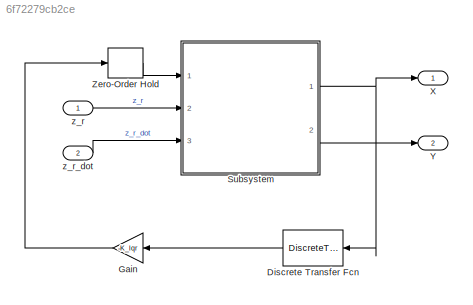
MODEL slx_6f72279cb2ce
KIND model
CONFIG AbsTol = auto
CONFIG EnableMultiTasking = off
CONFIG FixedStep = STEP_SIZE
CONFIG MaxStep = auto
CONFIG MinStep = auto
CONFIG RelTol = 1e-3
CONFIG SampleTimeConstraint = Unconstrained
CONFIG Solver = ode4
CONFIG SolverName = ode4
CONFIG StartTime = 0.0
CONFIG StopTime = SIM_TIME
BLOCK [DiscreteTransferFcn] Discrete Transfer Fcn
  Denominator = [1]
  InputPortMap = u0
  Ports = [1, 1]
  SampleTime = Ts
BLOCK [Gain] Gain
  Gain = -K_lqr
  Multiplication = Matrix(K*u) (u vector)
  OutDataTypeStr = Inherit: Inherit via internal rule
  ParamDataTypeStr = Inherit: Inherit via internal rule
  SaturateOnIntegerOverflow = off
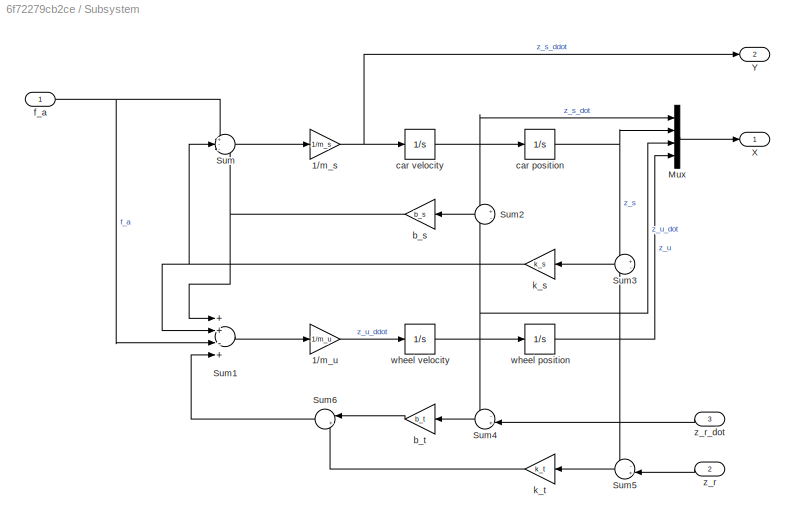
BLOCK [SubSystem] Subsystem
  Ports = [3, 2]
  RequestExecContextInheritance = off
BLOCK [Gain] Subsystem/1//m_s
  Gain = 1/m_s
  OutDataTypeStr = Inherit: Inherit via internal rule
  ParamDataTypeStr = Inherit: Inherit via internal rule
  SaturateOnIntegerOverflow = off
BLOCK [Gain] Subsystem/1//m_u
  Gain = 1/m_u
  OutDataTypeStr = Inherit: Inherit via internal rule
  ParamDataTypeStr = Inherit: Inherit via internal rule
  SaturateOnIntegerOverflow = off
BLOCK [Mux] Subsystem/Mux
  DisplayOption = bar
  Ports = [4, 1]
BLOCK [Sum] Subsystem/Sum
  IconShape = round
  InputSameDT = off
  Inputs = +--
  OutDataTypeStr = Inherit: Inherit via internal rule
  Ports = [3, 1]
  SaturateOnIntegerOverflow = off
BLOCK [Sum] Subsystem/Sum1
  InputSameDT = off
  Inputs = ++-+
  OutDataTypeStr = Inherit: Inherit via internal rule
  Ports = [4, 1]
  SaturateOnIntegerOverflow = off
BLOCK [Sum] Subsystem/Sum2
  IconShape = round
  InputSameDT = off
  Inputs = +-
  OutDataTypeStr = Inherit: Inherit via internal rule
  Ports = [2, 1]
  SaturateOnIntegerOverflow = off
BLOCK [Sum] Subsystem/Sum3
  IconShape = round
  InputSameDT = off
  Inputs = +-
  OutDataTypeStr = Inherit: Inherit via internal rule
  Ports = [2, 1]
  SaturateOnIntegerOverflow = off
BLOCK [Sum] Subsystem/Sum4
  IconShape = round
  InputSameDT = off
  Inputs = -+|
  OutDataTypeStr = Inherit: Inherit via internal rule
  Ports = [2, 1]
  SaturateOnIntegerOverflow = off
BLOCK [Sum] Subsystem/Sum5
  IconShape = round
  InputSameDT = off
  Inputs = -+|
  OutDataTypeStr = Inherit: Inherit via internal rule
  Ports = [2, 1]
  SaturateOnIntegerOverflow = off
BLOCK [Sum] Subsystem/Sum6
  IconShape = round
  InputSameDT = off
  Inputs = |++
  OutDataTypeStr = Inherit: Inherit via internal rule
  Ports = [2, 1]
  SaturateOnIntegerOverflow = off
BLOCK [Outport] Subsystem/X
  IconDisplay = Port number
BLOCK [Outport] Subsystem/Y
  IconDisplay = Port number
  Port = 2
BLOCK [Gain] Subsystem/b_s
  Gain = b_s
  OutDataTypeStr = Inherit: Inherit via internal rule
  ParamDataTypeStr = Inherit: Inherit via internal rule
  SaturateOnIntegerOverflow = off
BLOCK [Gain] Subsystem/b_t
  Gain = b_t
  OutDataTypeStr = Inherit: Inherit via internal rule
  ParamDataTypeStr = Inherit: Inherit via internal rule
  SaturateOnIntegerOverflow = off
BLOCK [Integrator] Subsystem/car position
  Ports = [1, 1]
BLOCK [Integrator] Subsystem/car velocity
  Ports = [1, 1]
BLOCK [Inport] Subsystem/f_a
  IconDisplay = Port number
BLOCK [Gain] Subsystem/k_s
  Gain = k_s
  OutDataTypeStr = Inherit: Inherit via internal rule
  ParamDataTypeStr = Inherit: Inherit via internal rule
  SaturateOnIntegerOverflow = off
BLOCK [Gain] Subsystem/k_t
  Gain = k_t
  OutDataTypeStr = Inherit: Inherit via internal rule
  ParamDataTypeStr = Inherit: Inherit via internal rule
  SaturateOnIntegerOverflow = off
BLOCK [Integrator] Subsystem/wheel position
  Ports = [1, 1]
BLOCK [Integrator] Subsystem/wheel velocity
  Ports = [1, 1]
BLOCK [Inport] Subsystem/z_r
  IconDisplay = Port number
  Port = 2
BLOCK [Inport] Subsystem/z_r_dot
  IconDisplay = Port number
  Port = 3
BLOCK [Outport] X
  IconDisplay = Port number
BLOCK [Outport] Y
  IconDisplay = Port number
  Port = 2
BLOCK [ZeroOrderHold] Zero-Order Hold
  SampleTime = Ts
BLOCK [Inport] z_r
  IconDisplay = Port number
BLOCK [Inport] z_r_dot
  IconDisplay = Port number
  Port = 2
LINE Discrete Transfer Fcn:1 -> Gain:1
LINE Gain:1 -> Zero-Order Hold:1
NET Subsystem/1//m_s:1 -> Subsystem/Y:1, Subsystem/car velocity:1
LINE Subsystem/1//m_u:1 -> Subsystem/wheel velocity:1
LINE Subsystem/Mux:1 -> Subsystem/X:1
LINE Subsystem/Sum1:1 -> Subsystem/1//m_u:1
LINE Subsystem/Sum2:1 -> Subsystem/b_s:1
LINE Subsystem/Sum3:1 -> Subsystem/k_s:1
LINE Subsystem/Sum4:1 -> Subsystem/b_t:1
LINE Subsystem/Sum5:1 -> Subsystem/k_t:1
LINE Subsystem/Sum6:1 -> Subsystem/Sum1:4
LINE Subsystem/Sum:1 -> Subsystem/1//m_s:1
NET Subsystem/b_s:1 -> Subsystem/Sum1:1, Subsystem/Sum:3
LINE Subsystem/b_t:1 -> Subsystem/Sum6:1
NET Subsystem/car position:1 -> Subsystem/Mux:2, Subsystem/Sum3:1
NET Subsystem/car velocity:1 -> Subsystem/Mux:1, Subsystem/Sum2:1, Subsystem/car position:1
NET Subsystem/f_a:1 -> Subsystem/Sum1:3, Subsystem/Sum:1
NET Subsystem/k_s:1 -> Subsystem/Sum1:2, Subsystem/Sum:2
LINE Subsystem/k_t:1 -> Subsystem/Sum6:2
NET Subsystem/wheel position:1 -> Subsystem/Mux:4, Subsystem/Sum3:2, Subsystem/Sum5:1
NET Subsystem/wheel velocity:1 -> Subsystem/Mux:3, Subsystem/Sum2:2, Subsystem/Sum4:1, Subsystem/wheel position:1
LINE Subsystem/z_r:1 -> Subsystem/Sum5:2
LINE Subsystem/z_r_dot:1 -> Subsystem/Sum4:2
NET Subsystem:1 -> Discrete Transfer Fcn:1, X:1
LINE Subsystem:2 -> Y:1
LINE Zero-Order Hold:1 -> Subsystem:1
LINE z_r:1 -> Subsystem:2
LINE z_r_dot:1 -> Subsystem:3
note: NET lines group one-source signal fan-out (src -> all destinations, sorted); 1:1 wires keep LINE
